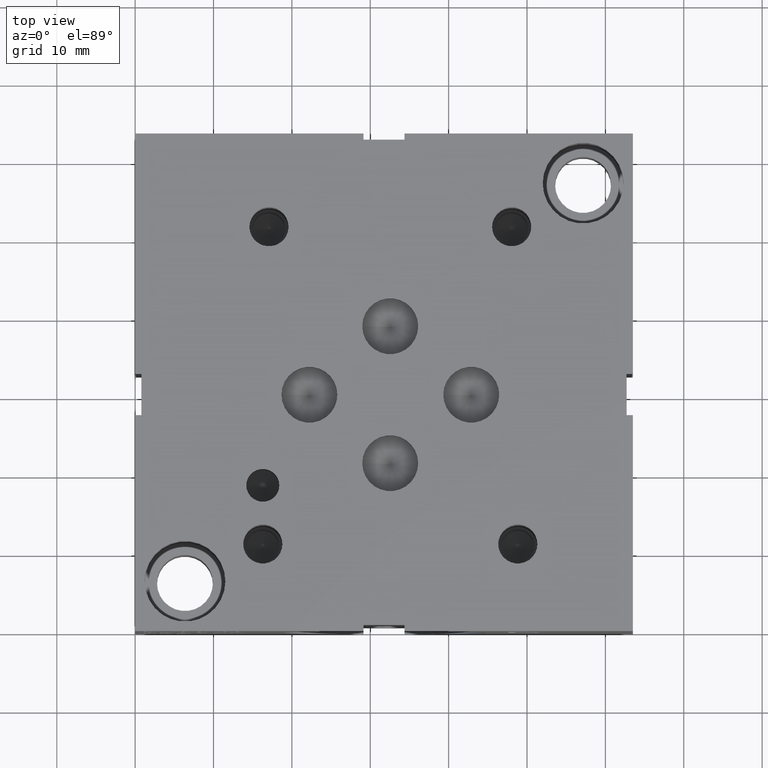
[diagram: clean part render]
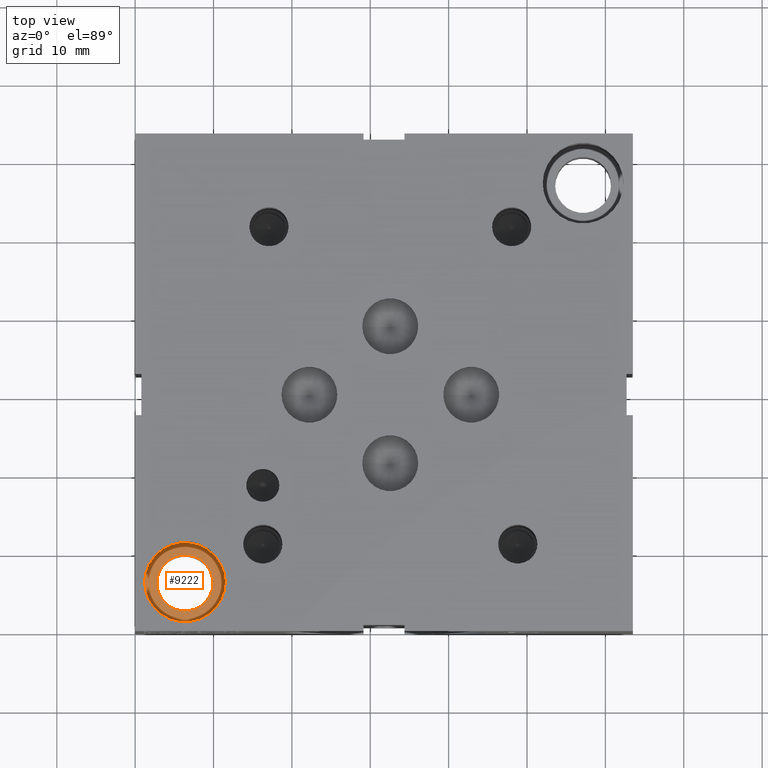
[diagram: same view with one face highlighted and labeled with its STEP entity id]
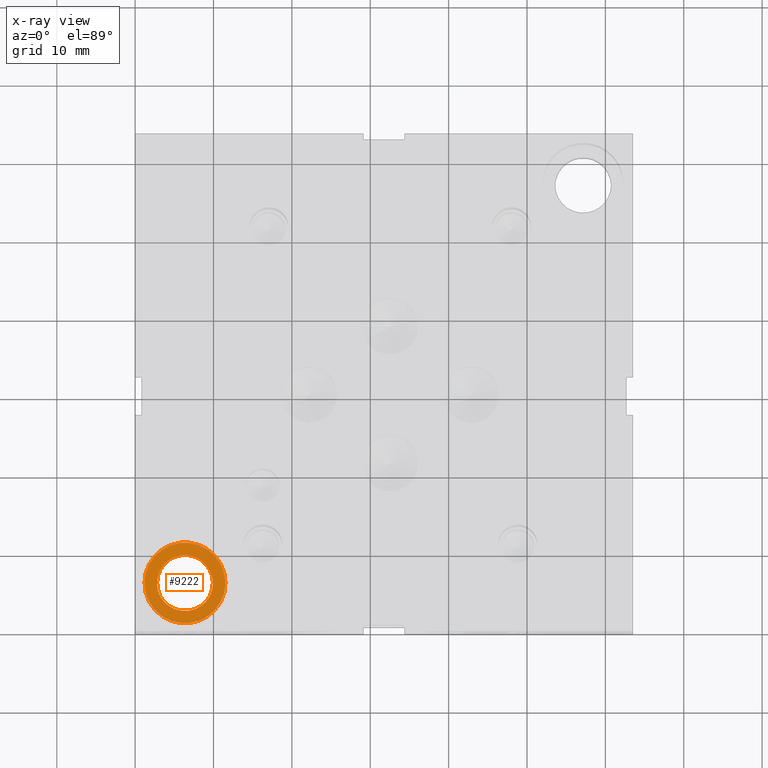
[diagram: x-ray of the same camera — body ghosted, the highlighted face saturated]
A machine part, top view. The second image highlights one B-rep face of the part: STEP entity #9222.
The next image is the same camera in x-ray: the body ghosted, the highlighted face saturated — about 5% of this face is hidden behind the body in this view.
In plain terms, the highlighted planar face has unit normal (0, 0, 1).
Its self-contained STEP definition (entity closure, byte-faithful):
#161=CIRCLE('',#9663,5.1562);
#162=CIRCLE('',#9664,5.1562);
#163=CIRCLE('',#9665,3.5687);
#225=FACE_BOUND('',#1495,.T.);
#501=PLANE('',#9662);
#966=FACE_OUTER_BOUND('',#1494,.T.);
#1494=EDGE_LOOP('',(#8203,#8204));
#1495=EDGE_LOOP('',(#8205));
#4415=VERTEX_POINT('',#15853);
#4416=VERTEX_POINT('',#15854);
#4417=VERTEX_POINT('',#15857);
#5685=EDGE_CURVE('',#4415,#4416,#161,.T.);
#5686=EDGE_CURVE('',#4416,#4415,#162,.T.);
#5687=EDGE_CURVE('',#4417,#4417,#163,.T.);
#8203=ORIENTED_EDGE('',*,*,#5685,.T.);
#8204=ORIENTED_EDGE('',*,*,#5686,.T.);
#8205=ORIENTED_EDGE('',*,*,#5687,.F.);
#9222=ADVANCED_FACE('',(#966,#225),#501,.T.);
#9662=AXIS2_PLACEMENT_3D('',#15852,#11395,#11396);
#9663=AXIS2_PLACEMENT_3D('',#15855,#11397,#11398);
#9664=AXIS2_PLACEMENT_3D('',#15856,#11399,#11400);
#9665=AXIS2_PLACEMENT_3D('',#15858,#11401,#11402);
#11395=DIRECTION('center_axis',(0.,0.,1.));
#11396=DIRECTION('ref_axis',(1.,0.,0.));
#11397=DIRECTION('center_axis',(0.,0.,1.));
#11398=DIRECTION('ref_axis',(1.,0.,0.));
#11399=DIRECTION('center_axis',(0.,0.,1.));
#11400=DIRECTION('ref_axis',(1.,0.,0.));
#11401=DIRECTION('center_axis',(0.,0.,1.));
#11402=DIRECTION('ref_axis',(1.,0.,0.));
#15852=CARTESIAN_POINT('Origin',(6.35,6.35,12.7));
#15853=CARTESIAN_POINT('',(11.5062,6.35,12.7));
#15854=CARTESIAN_POINT('',(1.1938,6.35,12.7));
#15855=CARTESIAN_POINT('Origin',(6.35,6.35,12.7));
#15856=CARTESIAN_POINT('Origin',(6.35,6.35,12.7));
#15857=CARTESIAN_POINT('',(2.7813,6.35,12.7));
#15858=CARTESIAN_POINT('Origin',(6.35,6.35,12.7));